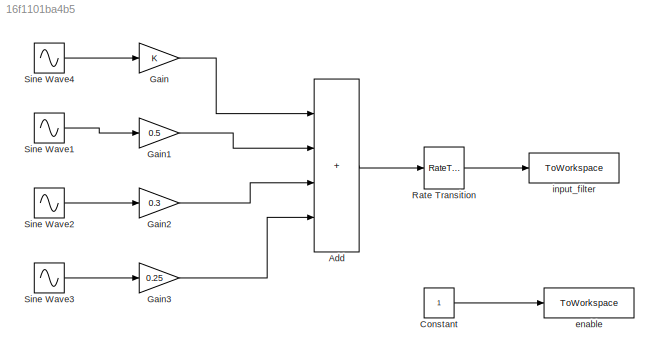
MODEL slx_16f1101ba4b5
KIND model
CONFIG AbsTol = auto
CONFIG EnableMultiTasking = on
CONFIG FixedStep = 100e-6
CONFIG MaxStep = auto
CONFIG MinStep = auto
CONFIG RelTol = 1e-3
CONFIG SampleTimeConstraint = Unconstrained
CONFIG SolverName = FixedStepDiscrete
CONFIG StartTime = 0.0
CONFIG StopTime = Inf
BLOCK [Sum] Add
  IconShape = rectangular
  Inputs = 4
  Ports = [4, 1]
BLOCK [Constant] Constant
  SampleTime = 1/1e3
BLOCK [Gain] Gain
BLOCK [Gain] Gain1
  Gain = 0.5
BLOCK [Gain] Gain2
  Gain = 0.3
BLOCK [Gain] Gain3
  Gain = 0.25
BLOCK [RateTransition] Rate Transition
  OutPortSampleTime = 1e-3
BLOCK [Sin] Sine Wave1
  Frequency = 150*2*pi
  Ports = [0, 1]
  SampleTime = 1/10e3
BLOCK [Sin] Sine Wave2
  Frequency = 250*2*pi
  Ports = [0, 1]
  SampleTime = 1/10e3
BLOCK [Sin] Sine Wave3
  Frequency = 350*2*pi
  Ports = [0, 1]
  SampleTime = 1/10e3
BLOCK [Sin] Sine Wave4
  Frequency = 50*2*pi
  Ports = [0, 1]
  SampleTime = 1/10e3
BLOCK [ToWorkspace] enable
  ExtModeLoggingTrig = on
  FixptAsFi = on
  MaxDataPoints = inf
  Ports = [1]
  SampleTime = -1
  VariableName = enable
BLOCK [ToWorkspace] input_filter
  ExtModeUploadOption = log
  FixptAsFi = on
  MaxDataPoints = inf
  Ports = [1]
  SampleTime = -1
  VariableName = u
LINE Add:1 -> Rate Transition:1
LINE Constant:1 -> enable:1
LINE Gain1:1 -> Add:2
LINE Gain2:1 -> Add:3
LINE Gain3:1 -> Add:4
LINE Gain:1 -> Add:1
LINE Rate Transition:1 -> input_filter:1
LINE Sine Wave1:1 -> Gain1:1
LINE Sine Wave2:1 -> Gain2:1
LINE Sine Wave3:1 -> Gain3:1
LINE Sine Wave4:1 -> Gain:1
